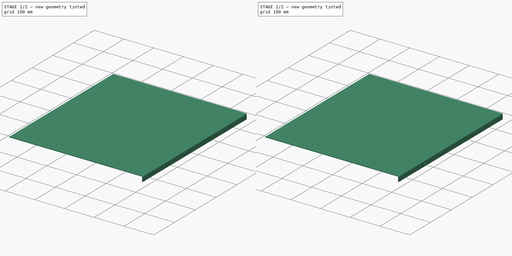
[diagram: build sequence overview — one tinted view per stage of 2, left to right]
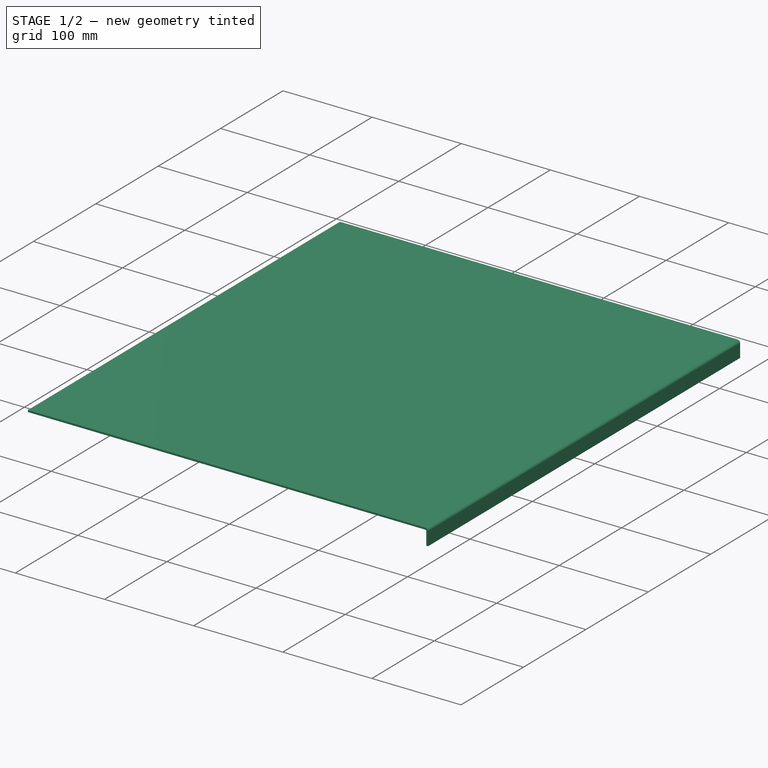
[diagram: stage 1 of 2 — iso view after this stage's code; geometry added in this stage tinted green]
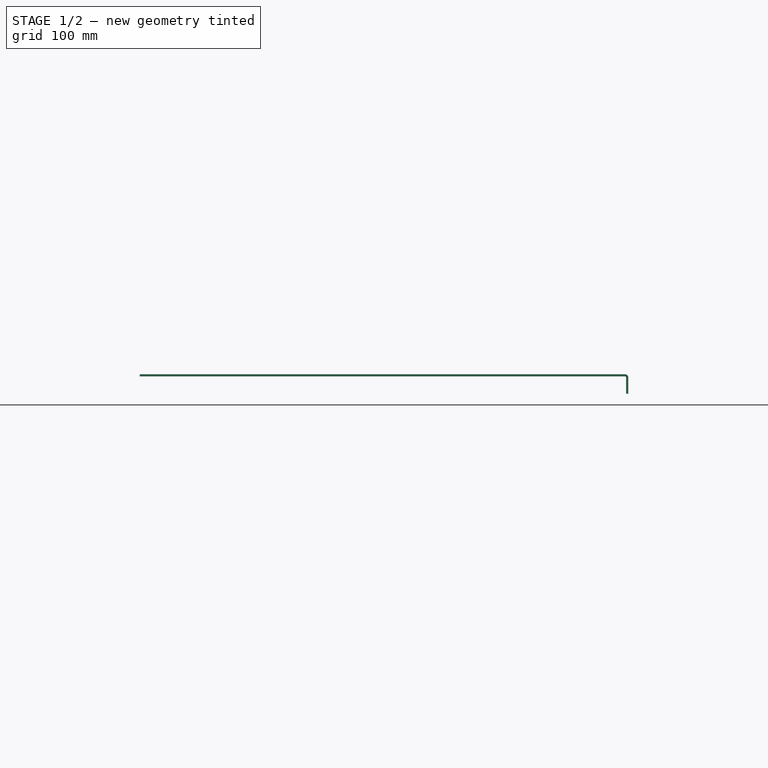
[diagram: stage 1 of 2 — front view after this stage's code; geometry added in this stage tinted green]
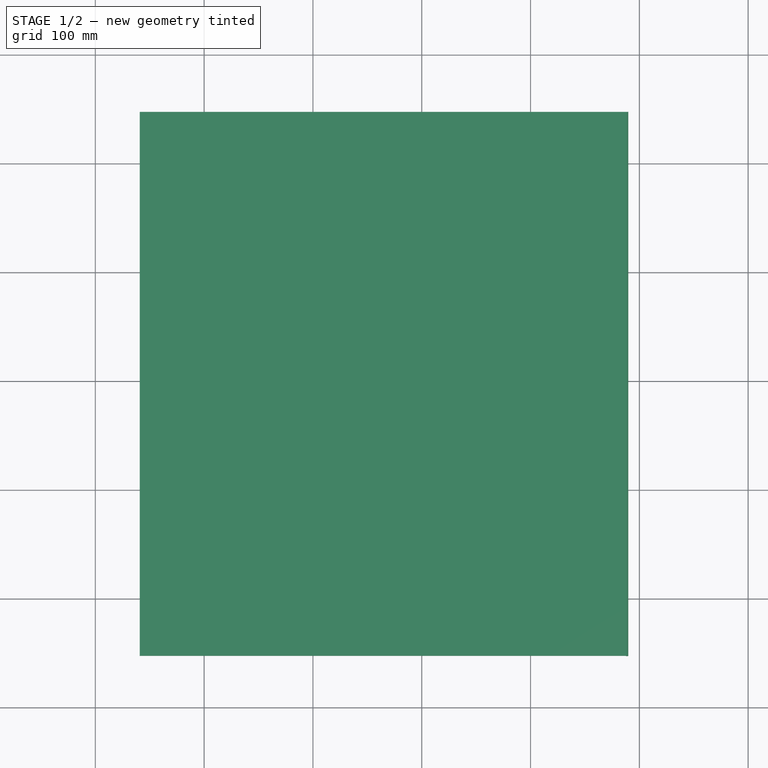
[diagram: stage 1 of 2 — top view after this stage's code; geometry added in this stage tinted green]
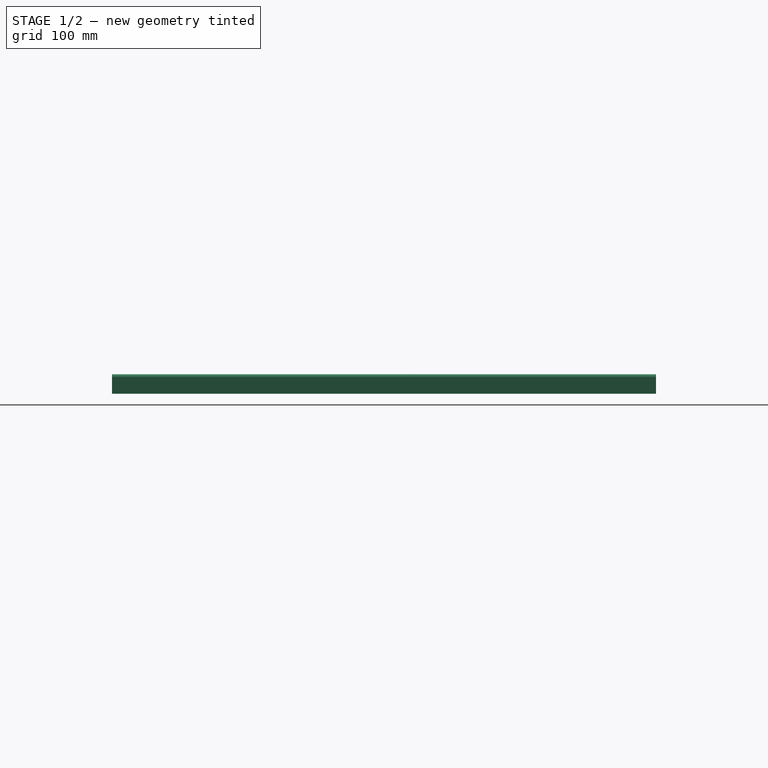
[diagram: stage 1 of 2 — right view after this stage's code; geometry added in this stage tinted green]
FCSTD DOCUMENT  (FreeCAD 0.16R6698 (Git))
Label: Front_Side_Bended_Coating
License: All rights reserved
LicenseURL: http://en.wikipedia.org/wiki/All_rights_reserved
objects: Sketcher::SketchObject×3, PartDesign::Pocket×2, PartDesign::Pad×1, Part::FeaturePython×1
note: 10 computed .brp shape members not serialized (recipe doc carries the construction recipe); baked Part::Feature solids carry a one-line shape summary decoded from their .brp

FEATURE [Sketcher::SketchObject] Sketch
  sketch-geometry (4):
    g0: LineSegment StartX=-259.19 StartY=247.394 StartZ=0 EndX=186.81 EndY=247.394 EndZ=0
    g1: LineSegment StartX=186.81 StartY=247.394 StartZ=0 EndX=186.81 EndY=-252.606 EndZ=0
    g2: LineSegment StartX=186.81 StartY=-252.606 StartZ=0 EndX=-259.19 EndY=-252.606 EndZ=0
    g3: LineSegment StartX=-259.19 StartY=-252.606 StartZ=0 EndX=-259.19 EndY=247.394 EndZ=0
  constraints (10):
    c: Coincident(g0,g1)
    c: Coincident(g1,g2)
    c: Coincident(g2,g3)
    c: Coincident(g3,g0)
    c: Horizontal(g0)
    c: Horizontal(g2)
    c: Vertical(g1)
    c: Vertical(g3)
    c: DistanceX(g0,g0) = 446
    c: DistanceY(g3,g3) = 500
FEATURE [PartDesign::Pad] Pad
  Length = 2
  Length2 = 100
  Sketch = -> Sketch
  Type = 0
FEATURE [Part::FeaturePython] Bend  # WARN: FeaturePython — macro-defined, semantics opaque (R4)
  angle = 90
  baseObject = -> Pad [Face2]
  gap1 = 0
  gap2 = 0
  invert = true
  length = 15
  radius = 1
  reliefd = 1
  reliefw = 0.5
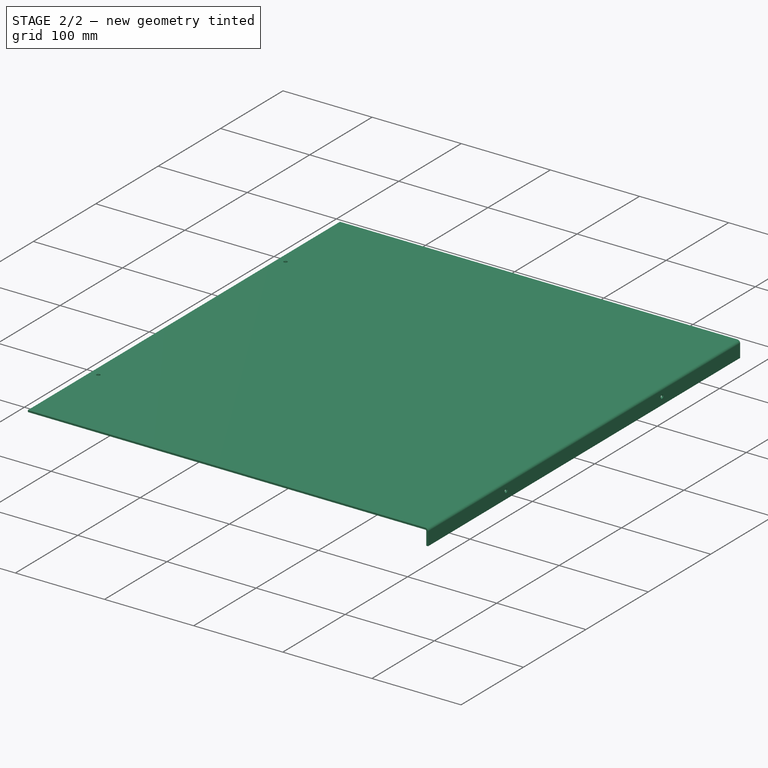
[diagram: stage 2 of 2 — iso view after this stage's code; geometry added in this stage tinted green]
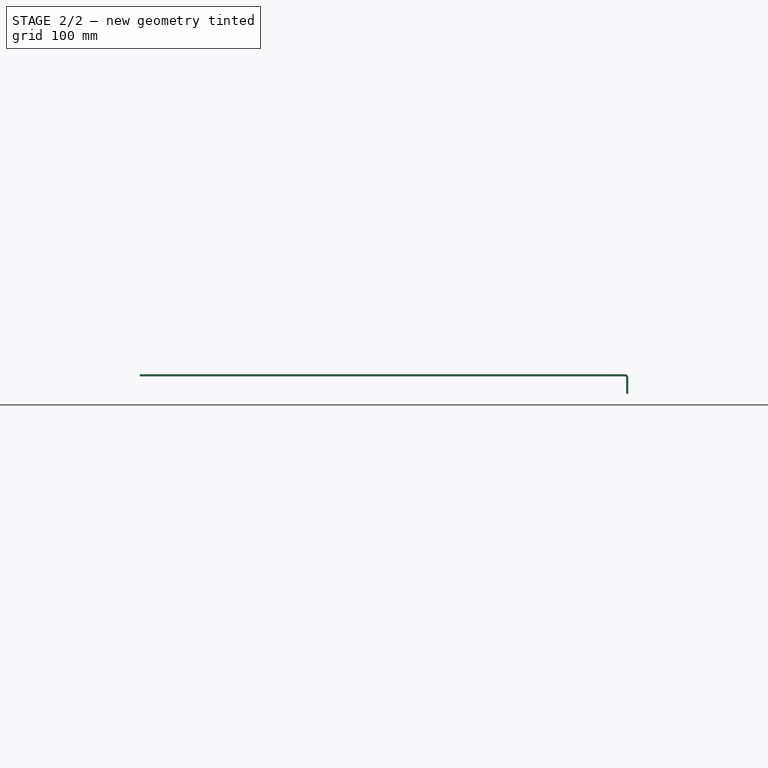
[diagram: stage 2 of 2 — front view after this stage's code; geometry added in this stage tinted green]
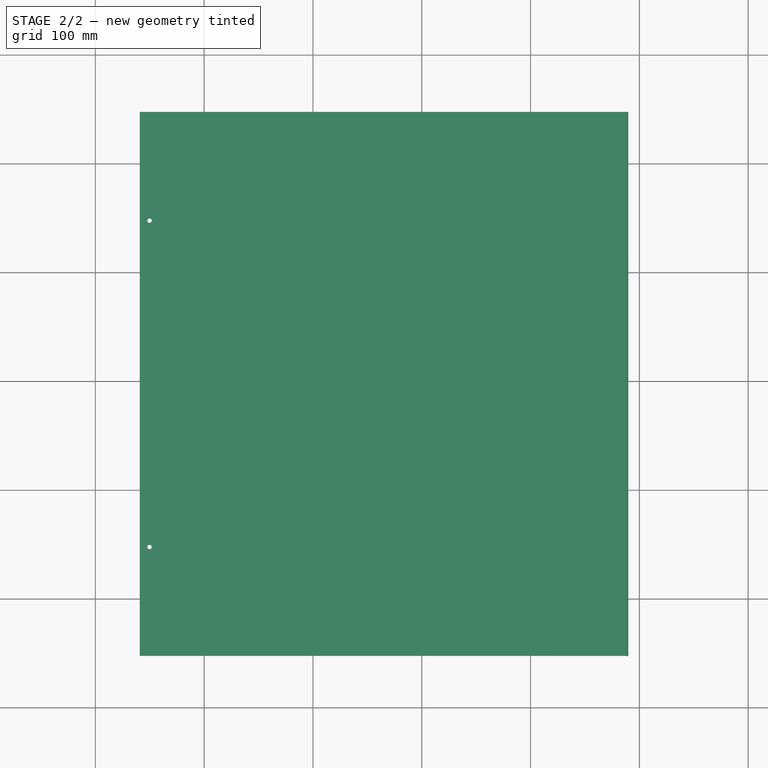
[diagram: stage 2 of 2 — top view after this stage's code; geometry added in this stage tinted green]
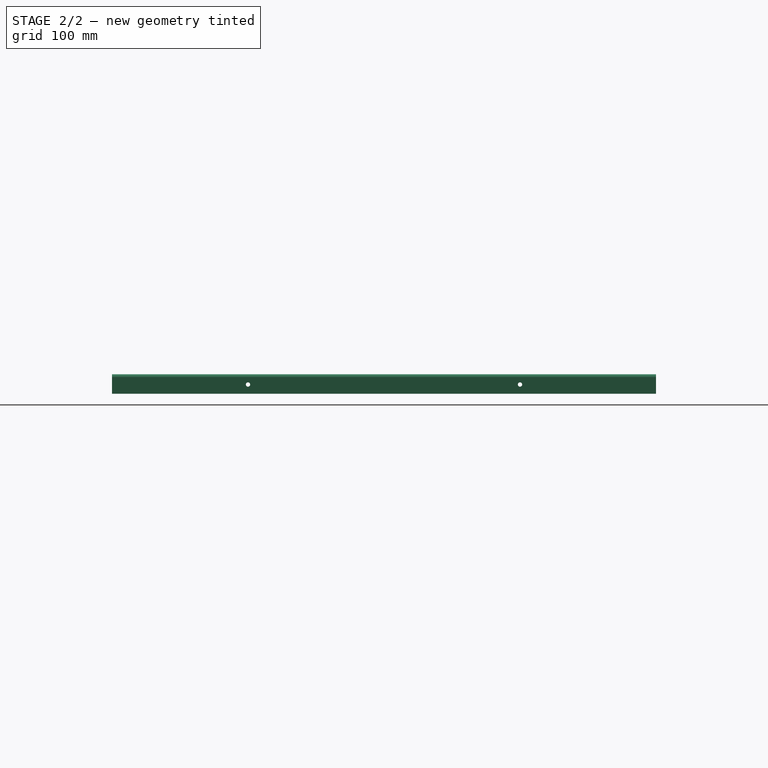
[diagram: stage 2 of 2 — right view after this stage's code; geometry added in this stage tinted green]
FEATURE [Sketcher::SketchObject] Sketch001
  ExternalGeometry = -> [Bend]
  Placement = pos=(189.81,0,0) rot=(0.57735,0.57735,0.57735;2.0944rad)
  Support = -> Bend [Face5]
  sketch-geometry (2):
    g0: Circle CenterX=-127.606 CenterY=-7.5 CenterZ=0 NormalX=0 NormalY=0 NormalZ=1 Radius=2
    g1: Circle CenterX=122.394 CenterY=-7.5 CenterZ=0 NormalX=0 NormalY=0 NormalZ=1 Radius=2
  constraints (6):
    c: Radius(g1) = 2
    c: Equal(g1,g0)
    c: DistanceX(g0,g1) = 250
    c: DistanceY(g1,g0) = 0
    c: DistanceX(g-3,g0) = 125
    c: DistanceY(g-3,g0) = 8.5
FEATURE [PartDesign::Pocket] Pocket
  Length = 5
  Sketch = -> Sketch001
  Type = 0
FEATURE [Sketcher::SketchObject] Sketch002
  ExternalGeometry = -> [Pocket]
  Placement = pos=(0,0,2) rot=(0,0,1;0rad)
  Support = -> Pocket [Face15]
  sketch-geometry (2):
    g0: Circle CenterX=-250.19 CenterY=147.394 CenterZ=0 NormalX=0 NormalY=0 NormalZ=1 Radius=2
    g1: Circle CenterX=-250.19 CenterY=-152.606 CenterZ=0 NormalX=0 NormalY=0 NormalZ=1 Radius=2
  constraints (6):
    c: DistanceX(g0,g1) = 0
    c: DistanceY(g1,g0) = 300
    c: DistanceY(g0,g-3) = 100
    c: DistanceX(g-3,g0) = 9
    c: Radius(g0) = 2
    c: Equal(g0,g1)
FEATURE [PartDesign::Pocket] Pocket001
  Length = 5
  Sketch = -> Sketch002
  Type = 0
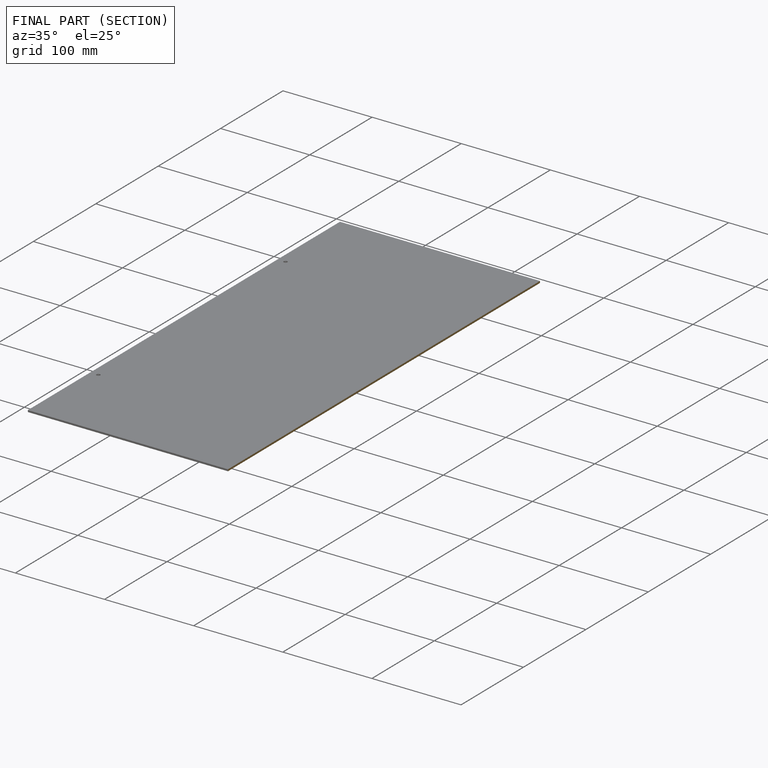
[diagram: finished part — half-section view (interior)]
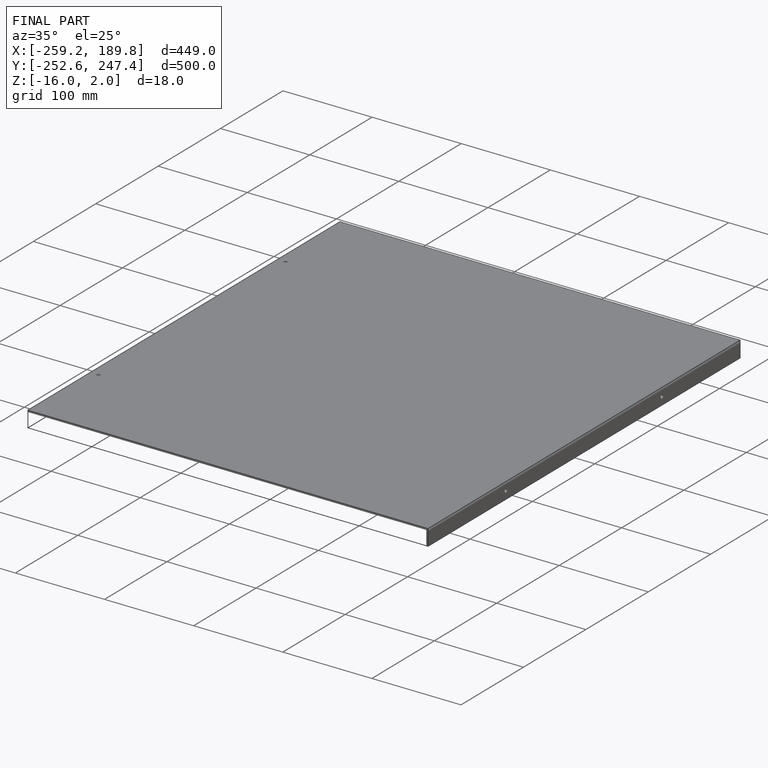
[diagram: finished part — iso view with bounding-box wireframe]
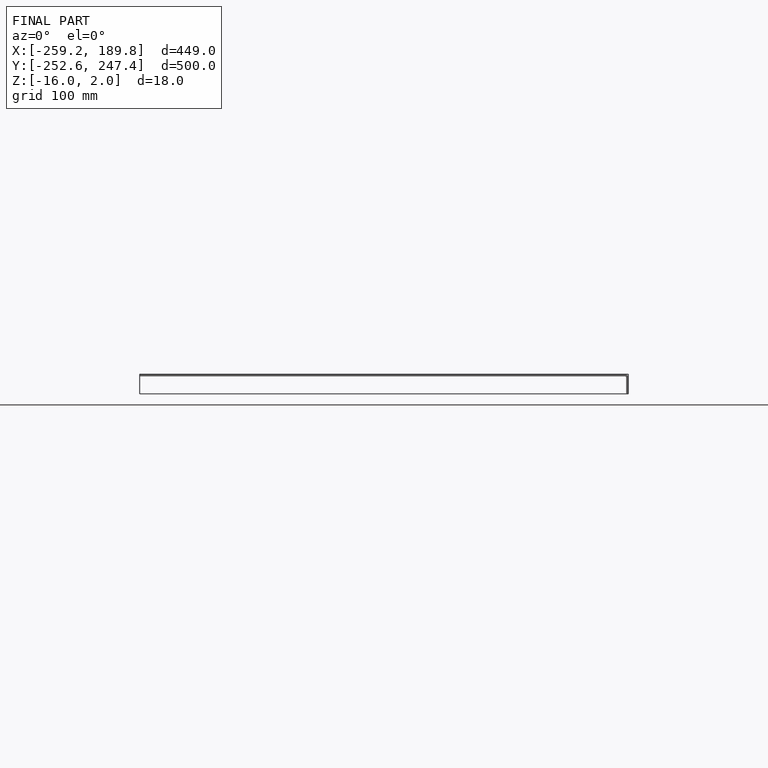
[diagram: finished part — front view with bounding-box wireframe]
